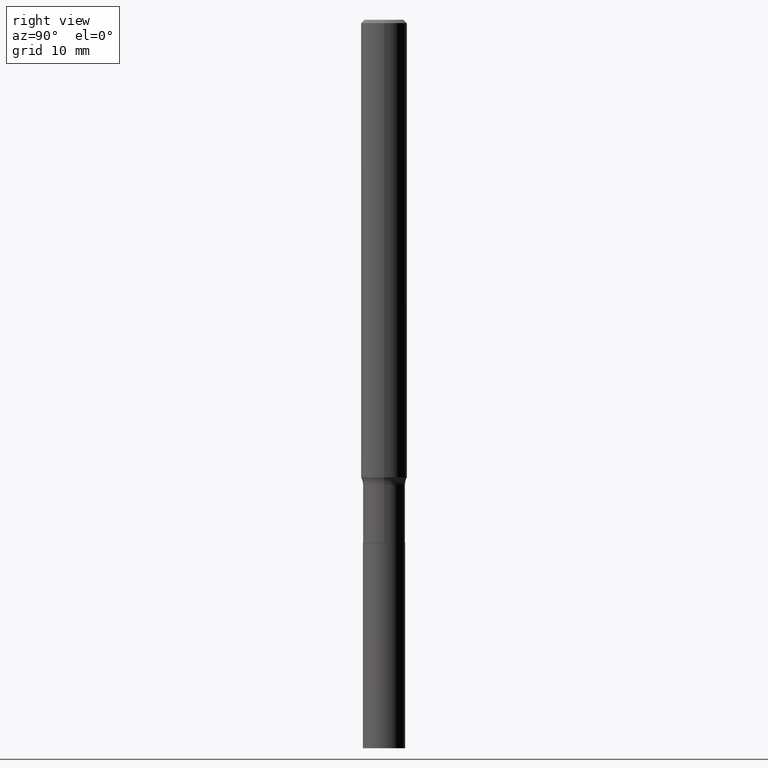
[diagram: clean part render]
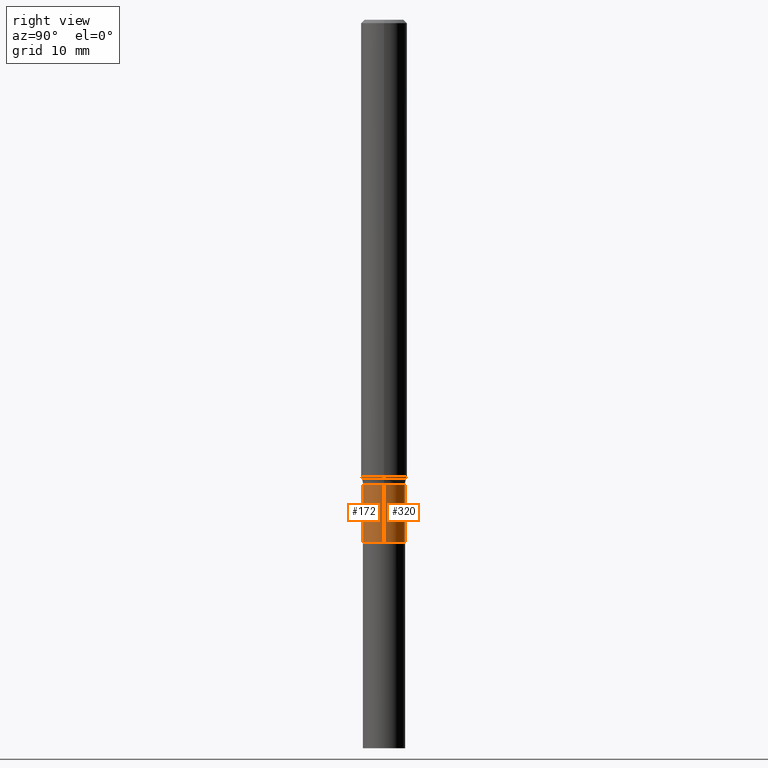
[diagram: same view with one multi-face feature highlighted, each face labeled with its STEP entity id]
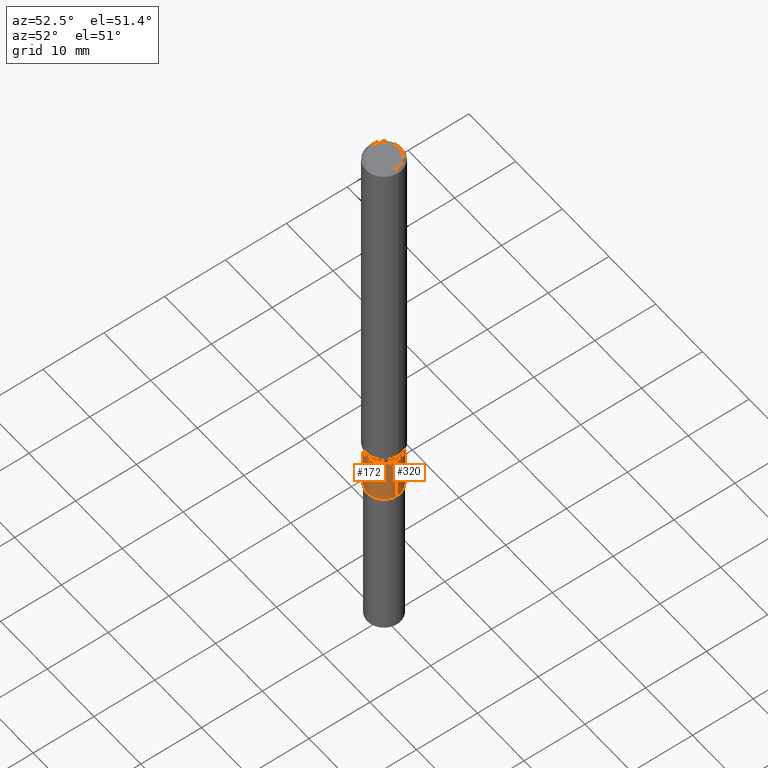
[diagram: same view with one multi-face feature highlighted, each face labeled with its STEP entity id]
A machine part, right view. The highlighted faces form ONE feature: a constant-radius fillet chain: 2 tangent blend faces with common blend radius 2.7495 mm. The faces share edges in the B-rep.
A second angle (auxiliary view) of the same feature is appended — it is thin or edge-on in the first view.
Their STEP definitions:
[1] entity #172 (Cylinder):
#6 = DIRECTION ( 'NONE',  ( 1.000000000000000000, -6.982962677686266711E-15, 4.876176775795935232E-29 ) ) ;
#9 = EDGE_CURVE ( 'NONE', #11, #436, #130, .T. ) ;
#11 = VERTEX_POINT ( 'NONE', #456 ) ;
#26 = EDGE_CURVE ( 'NONE', #87, #436, #354, .T. ) ;
#37 = DIRECTION ( 'NONE',  ( 1.000000000000000000, -6.982962677686267499E-15, 0.000000000000000000 ) ) ;
#49 = LINE ( 'NONE', #280, #155 ) ;
#59 = EDGE_LOOP ( 'NONE', ( #189, #232, #235, #273 ) ) ;
#64 = EDGE_CURVE ( 'NONE', #430, #11, #295, .T. ) ;
#67 = CARTESIAN_POINT ( 'NONE',  ( 6.565350103965236485E-29, -9.373579950392191238E-15, -2.684699999999999864 ) ) ;
#87 = VERTEX_POINT ( 'NONE', #253 ) ;
#102 = AXIS2_PLACEMENT_3D ( 'NONE', #67, #169, #37 ) ;
#105 = CARTESIAN_POINT ( 'NONE',  ( -0.1082499999999999990, -8.085932460113676808E-15, -2.684699999999999864 ) ) ;
#130 = LINE ( 'NONE', #452, #137 ) ;
#137 = VECTOR ( 'NONE', #268, 39.37007874015748143 ) ;
#144 = DIRECTION ( 'NONE',  ( 1.000000000000000000, -6.982962677686260400E-15, 0.000000000000000000 ) ) ;
#155 = VECTOR ( 'NONE', #337, 39.37007874015748143 ) ;
#169 = DIRECTION ( 'NONE',  ( -2.445468806185136597E-29, 3.491481338843145583E-15, 1.000000000000000000 ) ) ;
#172 = ADVANCED_FACE ( 'NONE', ( #416 ), #468, .T. ) ;
#189 = ORIENTED_EDGE ( 'NONE', *, *, #196, .F. ) ;
#196 = EDGE_CURVE ( 'NONE', #430, #87, #49, .T. ) ;
#212 = CARTESIAN_POINT ( 'NONE',  ( 0.1082499999999999712, -9.092515702615315753E-15, -2.387700000000000156 ) ) ;
#232 = ORIENTED_EDGE ( 'NONE', *, *, #64, .T. ) ;
#235 = ORIENTED_EDGE ( 'NONE', *, *, #9, .T. ) ;
#250 = AXIS2_PLACEMENT_3D ( 'NONE', #425, #395, #6 ) ;
#253 = CARTESIAN_POINT ( 'NONE',  ( -0.1082499999999999712, -8.085932460113676808E-15, -2.387700000000000156 ) ) ;
#268 = DIRECTION ( 'NONE',  ( -2.445468806185136877E-29, 3.491481338843145188E-15, 1.000000000000000000 ) ) ;
#273 = ORIENTED_EDGE ( 'NONE', *, *, #26, .F. ) ;
#279 = DIRECTION ( 'NONE',  ( -2.445468806185136597E-29, 3.491481338843145583E-15, 1.000000000000000000 ) ) ;
#280 = CARTESIAN_POINT ( 'NONE',  ( -0.1082499999999999851, 7.691625114603083455E-16, -5.324747235200934608E-30 ) ) ;
#295 = CIRCLE ( 'NONE', #102, 0.1082499999999999990 ) ;
#337 = DIRECTION ( 'NONE',  ( -2.445468806185136877E-29, 3.491481338843145188E-15, 1.000000000000000000 ) ) ;
#354 = CIRCLE ( 'NONE', #450, 0.1082499999999999712 ) ;
#381 = CARTESIAN_POINT ( 'NONE',  ( 5.839045868528251418E-29, -8.336609992755778675E-15, -2.387700000000000156 ) ) ;
#395 = DIRECTION ( 'NONE',  ( -2.445468806185136597E-29, 3.491481338843145583E-15, 1.000000000000000000 ) ) ;
#416 = FACE_OUTER_BOUND ( 'NONE', #59, .T. ) ;
#425 = CARTESIAN_POINT ( 'NONE',  ( 0.000000000000000000, 0.000000000000000000, 0.000000000000000000 ) ) ;
#430 = VERTEX_POINT ( 'NONE', #105 ) ;
#436 = VERTEX_POINT ( 'NONE', #212 ) ;
#450 = AXIS2_PLACEMENT_3D ( 'NONE', #381, #279, #144 ) ;
#452 = CARTESIAN_POINT ( 'NONE',  ( 0.1082499999999999851, -7.559057098595382610E-16, 5.278461359799099291E-30 ) ) ;
#456 = CARTESIAN_POINT ( 'NONE',  ( 0.1082499999999999990, -1.012948566025172989E-14, -2.684699999999999864 ) ) ;
#468 = CYLINDRICAL_SURFACE ( 'NONE', #250, 0.1082499999999999851 ) ;
[2] entity #320 (Cylinder):
#9 = EDGE_CURVE ( 'NONE', #11, #436, #130, .T. ) ;
#11 = VERTEX_POINT ( 'NONE', #456 ) ;
#49 = LINE ( 'NONE', #280, #155 ) ;
#72 = CARTESIAN_POINT ( 'NONE',  ( 5.839045868528251418E-29, -8.336609992755778675E-15, -2.387700000000000156 ) ) ;
#78 = DIRECTION ( 'NONE',  ( -2.445468806185136597E-29, 3.491481338843145583E-15, 1.000000000000000000 ) ) ;
#87 = VERTEX_POINT ( 'NONE', #253 ) ;
#97 = EDGE_LOOP ( 'NONE', ( #151, #104, #195, #367 ) ) ;
#104 = ORIENTED_EDGE ( 'NONE', *, *, #196, .T. ) ;
#105 = CARTESIAN_POINT ( 'NONE',  ( -0.1082499999999999990, -8.085932460113676808E-15, -2.684699999999999864 ) ) ;
#118 = AXIS2_PLACEMENT_3D ( 'NONE', #72, #209, #343 ) ;
#130 = LINE ( 'NONE', #452, #137 ) ;
#137 = VECTOR ( 'NONE', #268, 39.37007874015748143 ) ;
#149 = CIRCLE ( 'NONE', #118, 0.1082499999999999712 ) ;
#151 = ORIENTED_EDGE ( 'NONE', *, *, #401, .T. ) ;
#155 = VECTOR ( 'NONE', #337, 39.37007874015748143 ) ;
#156 = EDGE_CURVE ( 'NONE', #436, #87, #149, .T. ) ;
#185 = AXIS2_PLACEMENT_3D ( 'NONE', #387, #78, #351 ) ;
#195 = ORIENTED_EDGE ( 'NONE', *, *, #156, .F. ) ;
#196 = EDGE_CURVE ( 'NONE', #430, #87, #49, .T. ) ;
#209 = DIRECTION ( 'NONE',  ( -2.445468806185136597E-29, 3.491481338843145583E-15, 1.000000000000000000 ) ) ;
#212 = CARTESIAN_POINT ( 'NONE',  ( 0.1082499999999999712, -9.092515702615315753E-15, -2.387700000000000156 ) ) ;
#224 = CIRCLE ( 'NONE', #185, 0.1082499999999999990 ) ;
#245 = CARTESIAN_POINT ( 'NONE',  ( 0.000000000000000000, 0.000000000000000000, 0.000000000000000000 ) ) ;
#249 = DIRECTION ( 'NONE',  ( 1.000000000000000000, -6.982962677686266711E-15, 4.876176775795935232E-29 ) ) ;
#253 = CARTESIAN_POINT ( 'NONE',  ( -0.1082499999999999712, -8.085932460113676808E-15, -2.387700000000000156 ) ) ;
#268 = DIRECTION ( 'NONE',  ( -2.445468806185136877E-29, 3.491481338843145188E-15, 1.000000000000000000 ) ) ;
#280 = CARTESIAN_POINT ( 'NONE',  ( -0.1082499999999999851, 7.691625114603083455E-16, -5.324747235200934608E-30 ) ) ;
#320 = ADVANCED_FACE ( 'NONE', ( #350 ), #459, .T. ) ;
#337 = DIRECTION ( 'NONE',  ( -2.445468806185136877E-29, 3.491481338843145188E-15, 1.000000000000000000 ) ) ;
#343 = DIRECTION ( 'NONE',  ( 1.000000000000000000, -6.982962677686260400E-15, 0.000000000000000000 ) ) ;
#350 = FACE_OUTER_BOUND ( 'NONE', #97, .T. ) ;
#351 = DIRECTION ( 'NONE',  ( 1.000000000000000000, -6.982962677686267499E-15, 0.000000000000000000 ) ) ;
#360 = AXIS2_PLACEMENT_3D ( 'NONE', #245, #379, #249 ) ;
#367 = ORIENTED_EDGE ( 'NONE', *, *, #9, .F. ) ;
#379 = DIRECTION ( 'NONE',  ( -2.445468806185136597E-29, 3.491481338843145583E-15, 1.000000000000000000 ) ) ;
#387 = CARTESIAN_POINT ( 'NONE',  ( 6.565350103965236485E-29, -9.373579950392191238E-15, -2.684699999999999864 ) ) ;
#401 = EDGE_CURVE ( 'NONE', #11, #430, #224, .T. ) ;
#430 = VERTEX_POINT ( 'NONE', #105 ) ;
#436 = VERTEX_POINT ( 'NONE', #212 ) ;
#452 = CARTESIAN_POINT ( 'NONE',  ( 0.1082499999999999851, -7.559057098595382610E-16, 5.278461359799099291E-30 ) ) ;
#456 = CARTESIAN_POINT ( 'NONE',  ( 0.1082499999999999990, -1.012948566025172989E-14, -2.684699999999999864 ) ) ;
#459 = CYLINDRICAL_SURFACE ( 'NONE', #360, 0.1082499999999999851 ) ;